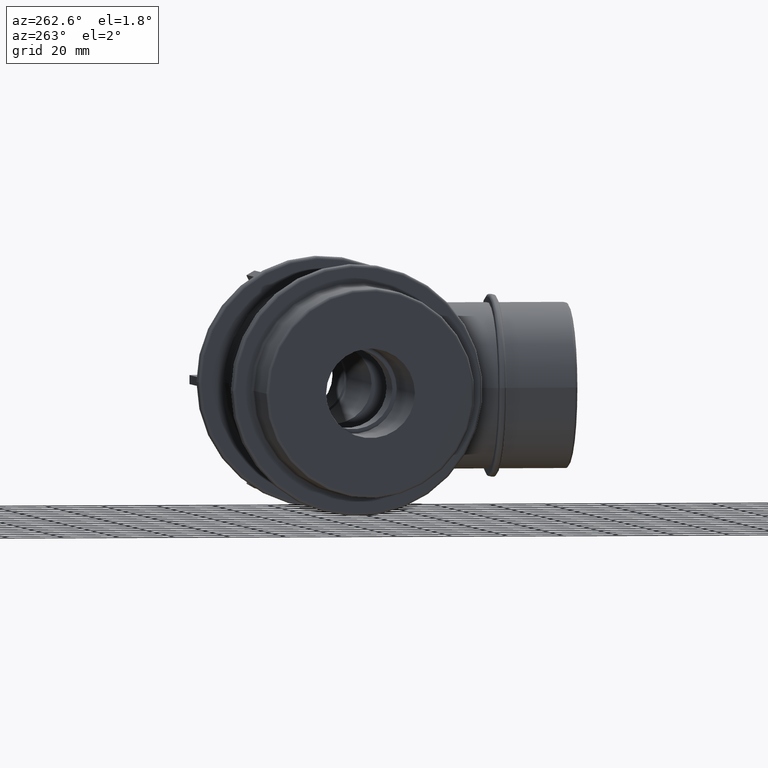
[diagram: clean part render]
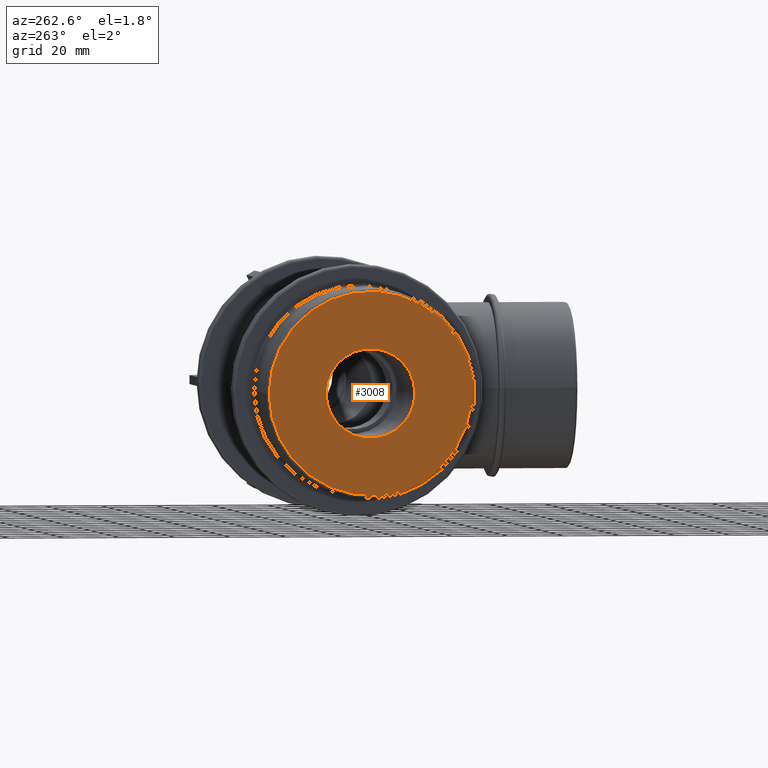
[diagram: same view with one face highlighted and labeled with its STEP entity id]
A machine part, auxiliary view. The second image highlights one B-rep face of the part: STEP entity #3008.
In plain terms, the highlighted planar face has unit normal (-1, 0, 0).
Its self-contained STEP definition (entity closure, byte-faithful):
#425=PLANE('',#3232);
#511=CIRCLE('',#3228,36.5);
#514=CIRCLE('',#3233,16.);
#741=FACE_BOUND('',#1017,.T.);
#801=FACE_OUTER_BOUND('',#1016,.T.);
#1016=EDGE_LOOP('',(#2070));
#1017=EDGE_LOOP('',(#2071));
#1336=VERTEX_POINT('',#4701);
#1339=VERTEX_POINT('',#4709);
#1630=EDGE_CURVE('',#1336,#1336,#511,.T.);
#1633=EDGE_CURVE('',#1339,#1339,#514,.T.);
#2070=ORIENTED_EDGE('',*,*,#1630,.F.);
#2071=ORIENTED_EDGE('',*,*,#1633,.T.);
#3008=ADVANCED_FACE('',(#801,#741),#425,.T.);
#3228=AXIS2_PLACEMENT_3D('',#4702,#3614,#3615);
#3232=AXIS2_PLACEMENT_3D('',#4708,#3622,#3623);
#3233=AXIS2_PLACEMENT_3D('',#4710,#3624,#3625);
#3614=DIRECTION('center_axis',(1.,0.,0.));
#3615=DIRECTION('ref_axis',(0.,-1.,1.83697019872103E-16));
#3622=DIRECTION('center_axis',(-1.,0.,0.));
#3623=DIRECTION('ref_axis',(0.,0.,1.));
#3624=DIRECTION('center_axis',(1.,0.,0.));
#3625=DIRECTION('ref_axis',(0.,0.,-1.));
#4701=CARTESIAN_POINT('',(-86.2,36.5,-2.23498040844392E-15));
#4702=CARTESIAN_POINT('Origin',(-86.2,0.,0.));
#4708=CARTESIAN_POINT('Origin',(-86.2,37.5,0.));
#4709=CARTESIAN_POINT('',(-86.2,16.,0.));
#4710=CARTESIAN_POINT('Origin',(-86.2,0.,0.));